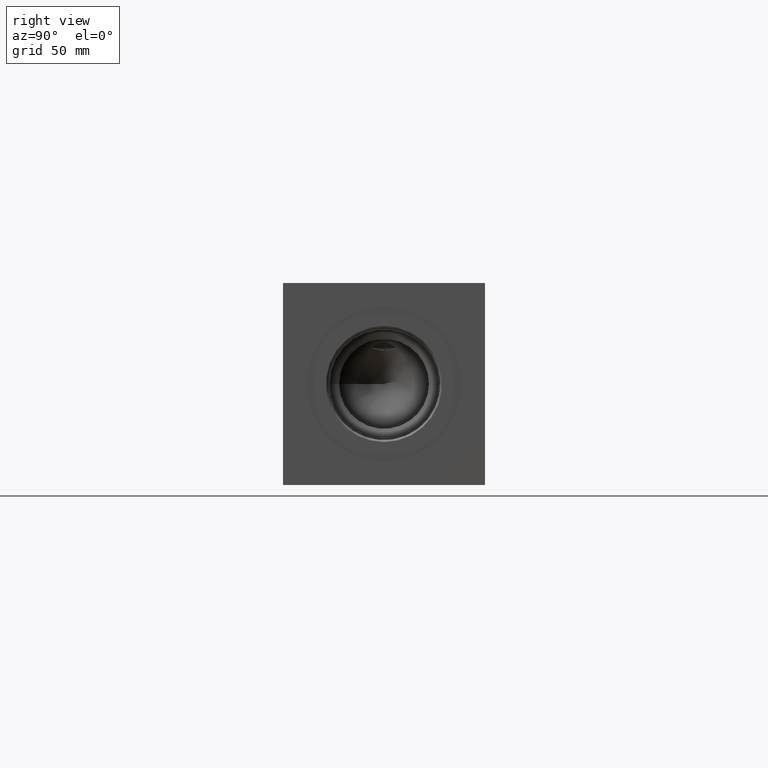
[diagram: clean part render]
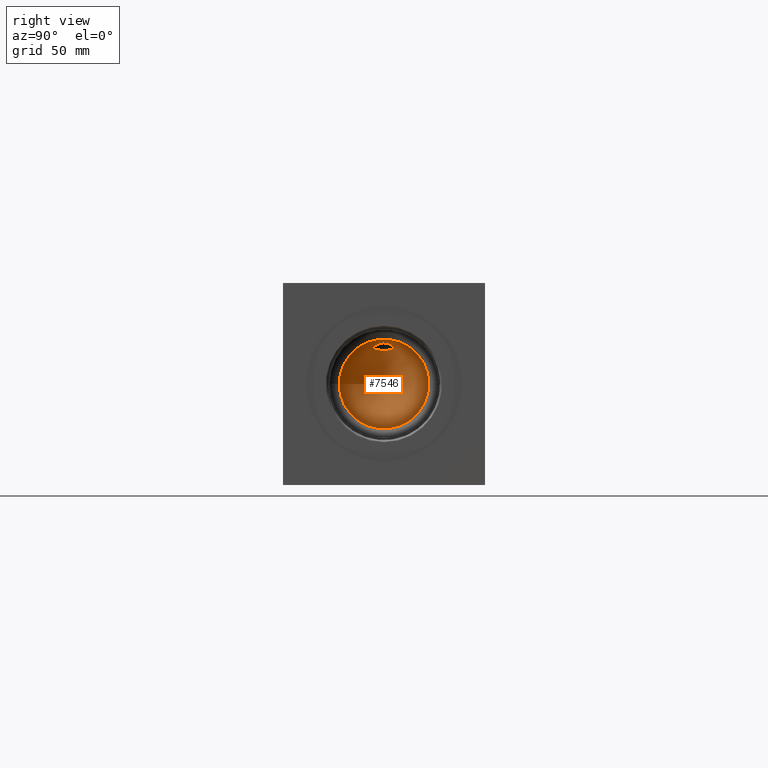
[diagram: same view with one face highlighted and labeled with its STEP entity id]
A machine part, right view. The second image highlights one B-rep face of the part: STEP entity #7546.
In plain terms, the highlighted conical surface has half-angle 60 deg.
Its self-contained STEP definition (entity closure, byte-faithful):
#26=CONICAL_SURFACE('',#7917,12.7,1.0471975511966);
#143=CIRCLE('',#7918,25.4);
#144=CIRCLE('',#7919,25.4);
#221=FACE_BOUND('',#1324,.T.);
#439=B_SPLINE_CURVE_WITH_KNOTS('',3,(#12697,#12698,#12699,#12700,#12701,
#12702,#12703,#12704,#12705,#12706,#12707,#12708,#12709,#12710),
 .UNSPECIFIED.,.F.,.F.,(4,2,2,2,2,2,4),(7.89160080464209,7.91816487812901,
8.26727522998891,8.61638558184881,8.96549593370871,9.31460628556861,9.3411703590554),
 .UNSPECIFIED.);
#440=B_SPLINE_CURVE_WITH_KNOTS('',3,(#12713,#12714,#12715,#12716,#12717,
#12718,#12719,#12720,#12721,#12722,#12723,#12724,#12725,#12726),
 .UNSPECIFIED.,.F.,.F.,(4,2,2,2,2,2,4),(2.20463967605849,2.21515036335288,
2.58434209057836,2.95353381780384,3.32272554502932,3.6919172722548,3.70242795954906),
 .UNSPECIFIED.);
#902=FACE_OUTER_BOUND('',#1323,.T.);
#1323=EDGE_LOOP('',(#6503,#6504,#6505,#6506));
#1324=EDGE_LOOP('',(#6507,#6508));
#2061=LINE('',#12883,#2783);
#2783=VECTOR('',#9345,12.7);
#3424=VERTEX_POINT('',#12694);
#3425=VERTEX_POINT('',#12696);
#3466=VERTEX_POINT('',#12879);
#3467=VERTEX_POINT('',#12880);
#3468=VERTEX_POINT('',#12882);
#4432=EDGE_CURVE('',#3424,#3425,#439,.T.);
#4434=EDGE_CURVE('',#3424,#3425,#440,.T.);
#4494=EDGE_CURVE('',#3466,#3467,#143,.T.);
#4495=EDGE_CURVE('',#3467,#3468,#2061,.T.);
#4496=EDGE_CURVE('',#3467,#3466,#144,.T.);
#6503=ORIENTED_EDGE('',*,*,#4494,.T.);
#6504=ORIENTED_EDGE('',*,*,#4495,.T.);
#6505=ORIENTED_EDGE('',*,*,#4495,.F.);
#6506=ORIENTED_EDGE('',*,*,#4496,.T.);
#6507=ORIENTED_EDGE('',*,*,#4434,.T.);
#6508=ORIENTED_EDGE('',*,*,#4432,.F.);
#7546=ADVANCED_FACE('',(#902,#221),#26,.F.);
#7917=AXIS2_PLACEMENT_3D('',#12878,#9341,#9342);
#7918=AXIS2_PLACEMENT_3D('',#12881,#9343,#9344);
#7919=AXIS2_PLACEMENT_3D('',#12884,#9346,#9347);
#9341=DIRECTION('center_axis',(1.,0.,0.));
#9342=DIRECTION('ref_axis',(0.,1.,0.));
#9343=DIRECTION('center_axis',(1.,0.,0.));
#9344=DIRECTION('ref_axis',(0.,1.,0.));
#9345=DIRECTION('',(-0.5,0.866025403784439,1.06057523872491E-16));
#9346=DIRECTION('center_axis',(1.,0.,0.));
#9347=DIRECTION('ref_axis',(0.,1.,0.));
#12694=CARTESIAN_POINT('',(337.872115487403,63.8243991735531,77.53323));
#12696=CARTESIAN_POINT('',(337.872115487403,50.4756008264485,77.53323));
#12697=CARTESIAN_POINT('Ctrl Pts',(337.872115487403,63.8243991735531,77.53323));
#12698=CARTESIAN_POINT('Ctrl Pts',(337.893036888163,63.760541261947,77.592270138959));
#12699=CARTESIAN_POINT('Ctrl Pts',(337.913705742424,63.696439096784,77.6504699370252));
#12700=CARTESIAN_POINT('Ctrl Pts',(338.202253352416,62.7868272378935,78.4613162899436));
#12701=CARTESIAN_POINT('Ctrl Pts',(338.465558293989,61.7650427185077,79.1787748230395));
#12702=CARTESIAN_POINT('Ctrl Pts',(338.835113327682,59.5303811711223,80.1735171366513));
#12703=CARTESIAN_POINT('Ctrl Pts',(338.9376,58.3137011728663,80.4436356924074));
#12704=CARTESIAN_POINT('Ctrl Pts',(338.9376,55.9862988271337,80.4436356924074));
#12705=CARTESIAN_POINT('Ctrl Pts',(338.835113327682,54.7696188288777,80.1735171366513));
#12706=CARTESIAN_POINT('Ctrl Pts',(338.465558293989,52.5349572814923,79.1787748230395));
#12707=CARTESIAN_POINT('Ctrl Pts',(338.202253352416,51.5131727621065,78.4613162899436));
#12708=CARTESIAN_POINT('Ctrl Pts',(337.913705742424,50.6035609032163,77.6504699370255));
#12709=CARTESIAN_POINT('Ctrl Pts',(337.893036888163,50.5394587380536,77.5922701389595));
#12710=CARTESIAN_POINT('Ctrl Pts',(337.872115487403,50.4756008264478,77.5332300000009));
#12713=CARTESIAN_POINT('Ctrl Pts',(337.872115487403,63.8243991735531,77.53323));
#12714=CARTESIAN_POINT('Ctrl Pts',(337.860577691872,63.7954206537764,77.5216907640929));
#12715=CARTESIAN_POINT('Ctrl Pts',(337.849085113838,63.7664262345962,77.5101967478555));
#12716=CARTESIAN_POINT('Ctrl Pts',(337.435548757377,62.7184169943411,77.096608517211));
#12717=CARTESIAN_POINT('Ctrl Pts',(337.088473297214,61.6830936873136,76.7494850322859));
#12718=CARTESIAN_POINT('Ctrl Pts',(336.579196509804,59.5142328528356,76.2401343842849));
#12719=CARTESIAN_POINT('Ctrl Pts',(336.417114735056,58.3806390907516,76.0780271537963));
#12720=CARTESIAN_POINT('Ctrl Pts',(336.417114735056,55.9193609092484,76.0780271537963));
#12721=CARTESIAN_POINT('Ctrl Pts',(336.579196509804,54.7857671471644,76.2401343842848));
#12722=CARTESIAN_POINT('Ctrl Pts',(337.088473297214,52.6169063126865,76.7494850322857));
#12723=CARTESIAN_POINT('Ctrl Pts',(337.435548757377,51.5815830056589,77.096608517211));
#12724=CARTESIAN_POINT('Ctrl Pts',(337.849085113838,50.5335737654041,77.5101967478553));
#12725=CARTESIAN_POINT('Ctrl Pts',(337.860577691872,50.5045793462244,77.5216907640926));
#12726=CARTESIAN_POINT('Ctrl Pts',(337.872115487402,50.4756008264479,77.5332299999995));
#12878=CARTESIAN_POINT('Origin',(332.821361581292,57.15,57.15));
#12879=CARTESIAN_POINT('',(340.15371,82.55,57.15));
#12880=CARTESIAN_POINT('',(340.15371,31.75,57.15));
#12881=CARTESIAN_POINT('Origin',(340.15371,57.15,57.15));
#12882=CARTESIAN_POINT('',(325.489013162584,57.15,57.15));
#12883=CARTESIAN_POINT('',(332.821361581292,44.45,57.15));
#12884=CARTESIAN_POINT('Origin',(340.15371,57.15,57.15));